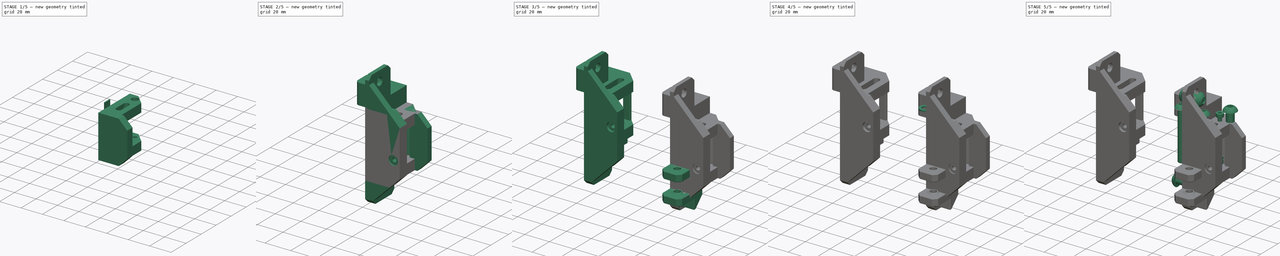
[diagram: build sequence overview — one tinted view per stage of 5, left to right]
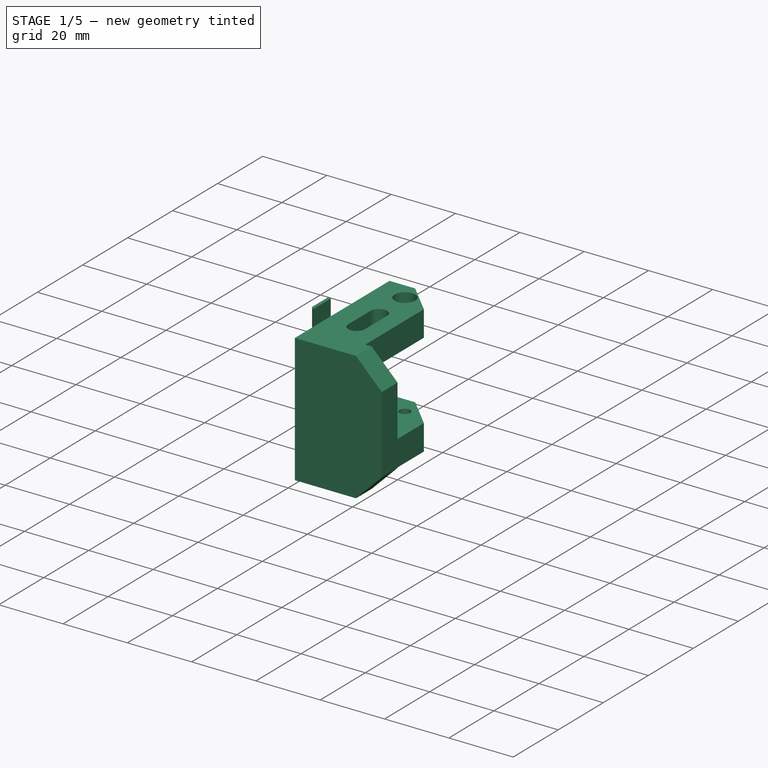
[diagram: stage 1 of 5 — iso view after this stage's code; geometry added in this stage tinted green]
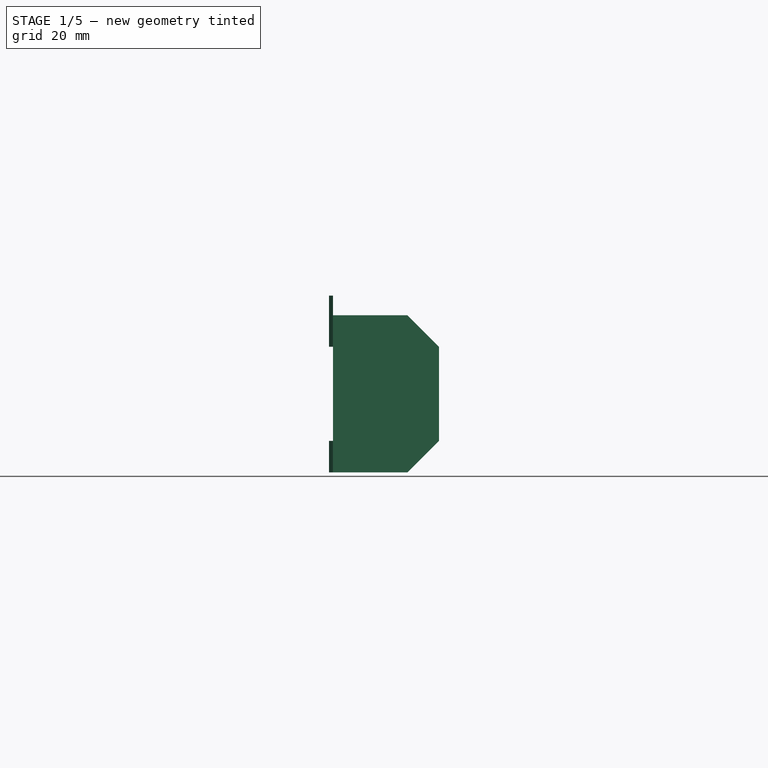
[diagram: stage 1 of 5 — front view after this stage's code; geometry added in this stage tinted green]
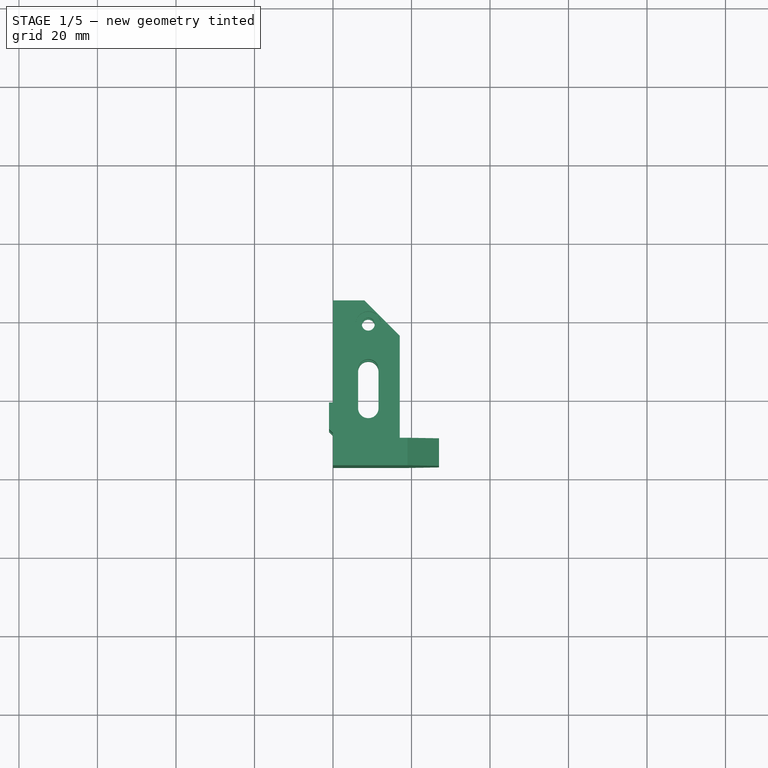
[diagram: stage 1 of 5 — top view after this stage's code; geometry added in this stage tinted green]
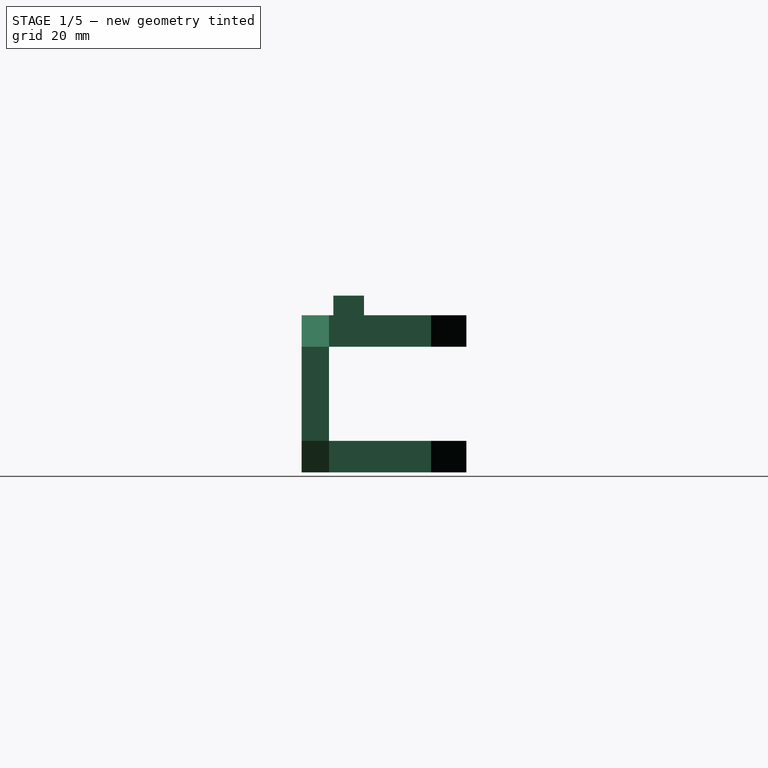
[diagram: stage 1 of 5 — right view after this stage's code; geometry added in this stage tinted green]
FCSTD DOCUMENT  (FreeCAD 0.19R24291 (Git))
Label: front-tesioner
License: Other
LicenseURL: GPL3
objects: Part::Feature×38, Part::FeaturePython×20, Part::Box×20, Part::Cut×14, Part::Chamfer×13, Part::Cylinder×10, App::Part×9, Sketcher::SketchObject×6, PartDesign::Plane×6, Part::MultiFuse×6, PartDesign::Chamfer×5, PartDesign::Pad×3, PartDesign::Pocket×3, PartDesign::CoordinateSystem×2, Part::Fillet×2, PartDesign::Body×1
note: 160 computed .brp shape members not serialized (recipe doc carries the construction recipe); baked Part::Feature solids carry a one-line shape summary decoded from their .brp

FEATURE [Part::Box] Box006  label="Cube006"
  AttacherType = Attacher::AttachEngine3D
  Height = 40
  Length = 17
  Placement = pos=(0,3,-6) rot=(0,0,1;0rad)
  Width = 42
FEATURE [Part::Box] Box008  label="Cube008"
  AttacherType = Attacher::AttachEngine3D
  Height = 40
  Length = 27
  Placement = pos=(0,3,-6) rot=(0,0,1;0rad)
  Width = 7
FEATURE [Part::Box] Box013  label="Cube013"
  AttacherType = Attacher::AttachEngine3D
  Height = 8
  Length = 1
  Placement = pos=(-1,11.1,-6) rot=(0,0,1;0rad)
  Width = 7.8
FEATURE [Part::Box] Box014  label="Cube014"
  AttacherType = Attacher::AttachEngine3D
  Height = 67
  Length = 5.2
  Placement = pos=(6.4,15,-6) rot=(0,0,1;0rad)
  Width = 15
FEATURE [Part::Chamfer] Chamfer020026003
  Base = -> Box006
  Edges = 1 edges r=9: [Edge7]
FEATURE [Part::Cylinder] Cylinder005
  Angle = 360
  AttacherType = Attacher::AttachEngine3D
  Height = 4
  Placement = pos=(9,39,31) rot=(0,0,1;0rad)
  Radius = 3.2
FEATURE [Part::Cylinder] Cylinder006
  Angle = 360
  AttacherType = Attacher::AttachEngine3D
  Height = 54
  Placement = pos=(9,39,-12) rot=(0,0,1;0rad)
  Radius = 1.65
FEATURE [Part::Cut] Cut002002002007004004001006009
  Base = -> Chamfer020026003
  Tool = -> Cylinder006
FEATURE [Part::Cylinder] Cylinder007
  Angle = 360
  AttacherType = Attacher::AttachEngine3D
  Height = 6
  Placement = pos=(9,39,-6) rot=(0,0,1;0rad)
  Radius = 1.9
FEATURE [Part::Cut] Cut002002002007004004001006010
  Base = -> Cut002002002007004004001006009
  Tool = -> Cylinder007
FEATURE [Part::Cut] Cut002002002007004004001006011
  Base = -> Cut002002002007004004001006010
  Tool = -> Cylinder005
FEATURE [Part::Chamfer] Chamfer020026005
  Base = -> Box008
  Edges = 2 edges r=8: [Edge6,Edge8]
FEATURE [Part::Box] Box021  label="Cube021"
  AttacherType = Attacher::AttachEngine3D
  Height = 24
  Length = 17
  Placement = pos=(0,10,2) rot=(0,0,1;0rad)
  Width = 40
FEATURE [Part::Cut] Cut002002002007004004001006012
  Base = -> Cut002002002007004004001006011
  Tool = -> Box021
FEATURE [Part::Box] Box022  label="Cube022"
  AttacherType = Attacher::AttachEngine3D
  Height = 13
  Length = 1
  Placement = pos=(-1,11.1,26) rot=(0,0,1;0rad)
  Width = 7.8
FEATURE [Part::MultiFuse] Fusion
  Shapes = -> [Box013,Box022]
FEATURE [Part::Chamfer] Chamfer020026007
  Base = -> Fusion
  Edges = 2 edges r=0.99: [Edge1,Edge13]
FEATURE [Part::Fillet] Fillet001
  Base = -> Box014
  Edges = 4 edges r=2.55: [Edge1,Edge3,Edge5,Edge7]
FEATURE [Part::Cut] Cut002002002007004004001006016
  Base = -> Cut002002002007004004001006012
  Tool = -> Fillet001
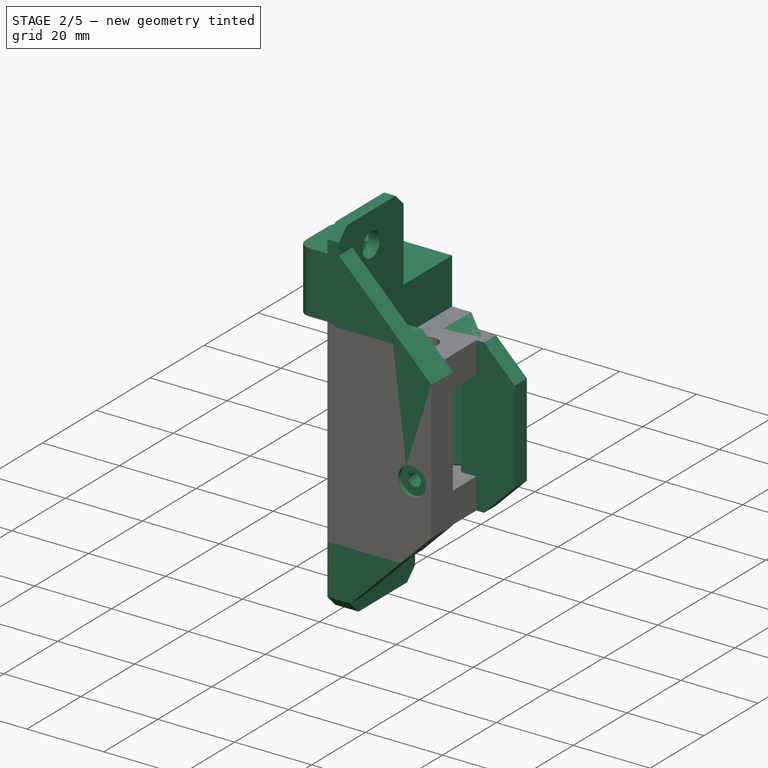
[diagram: stage 2 of 5 — iso view after this stage's code; geometry added in this stage tinted green]
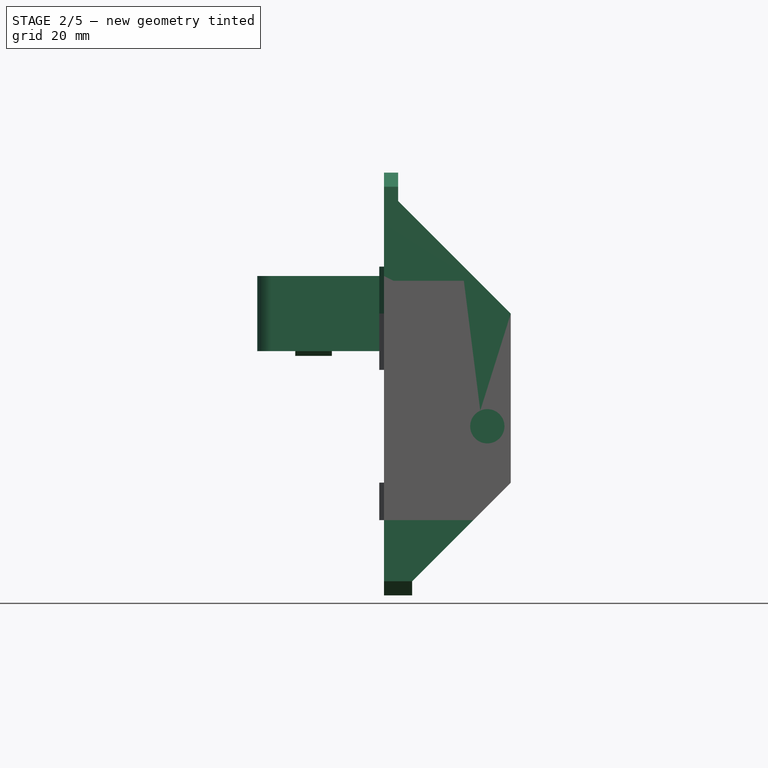
[diagram: stage 2 of 5 — front view after this stage's code; geometry added in this stage tinted green]
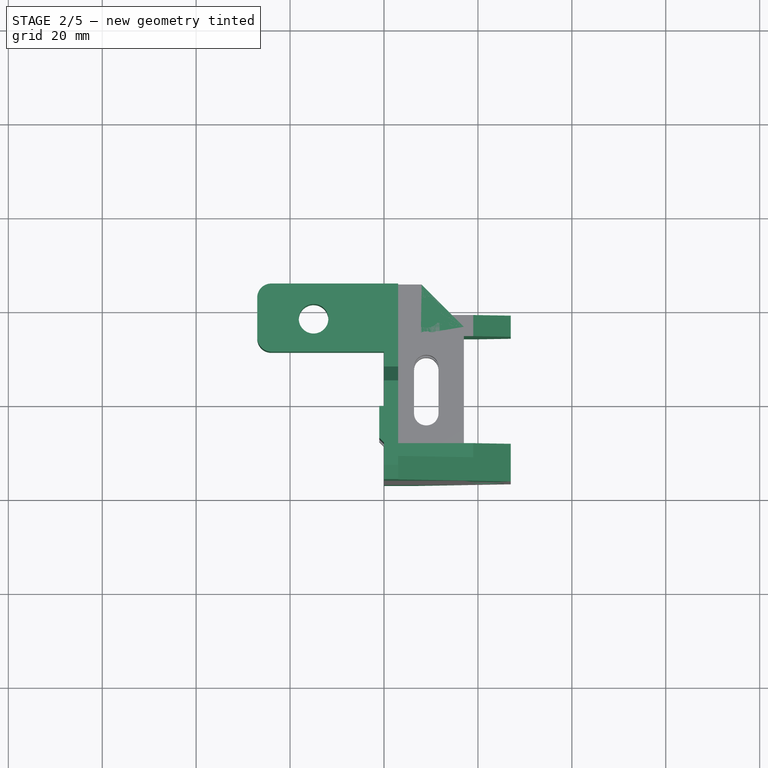
[diagram: stage 2 of 5 — top view after this stage's code; geometry added in this stage tinted green]
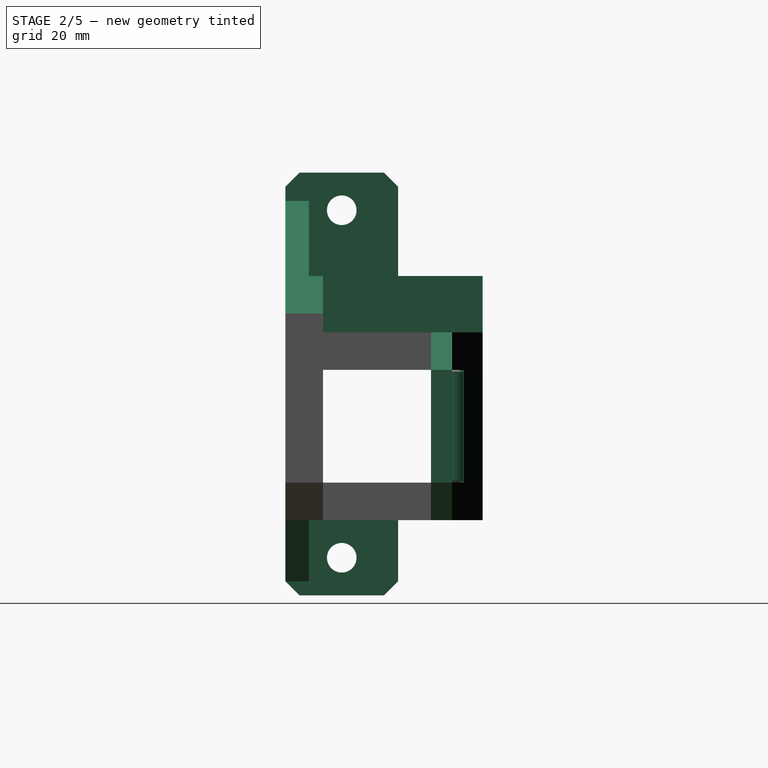
[diagram: stage 2 of 5 — right view after this stage's code; geometry added in this stage tinted green]
FEATURE [PartDesign::Body] Body  label="idler-inner"
  Group = -> [Sketch,Pad,DatumPlane,DatumPlane001,DatumPlane002,Sketch002,Sketch003,DatumPlane003,DatumPlane004,Pad001,Pad002,DatumPlane005,Sketch004,Pocket001,Chamfer,Chamfer020021,Chamfer020022,Chamfer020023,Sketch005,Pocket,Sketch006,Pocket002,Chamfer020024]
  Origin = -> Origin009
  Placement = pos=(9,-2e-15,14) rot=(0,0,1;4.71239rad)
  Tip = -> Chamfer020024
FEATURE [Part::Box] Box  label="Cube"
  AttacherType = Attacher::AttachEngine3D
  Height = 24
  Length = 17
  Placement = pos=(0,11,2) rot=(0,0,1;0rad)
  Width = 35
FEATURE [Part::Feature] Cut002002002007004004001006001  label="outer-base001"
  shape: bbox 54 x 42 x 90 mm, 90 faces (baked)
FEATURE [Part::Feature] Cut002002002007004004001006002  label="outer-base002"
  shape: bbox 54 x 42 x 90 mm, 90 faces (baked)
FEATURE [Part::Box] Box017  label="Cube017"
  AttacherType = Attacher::AttachEngine3D
  Height = 24
  Length = 17
  Placement = pos=(3,11,34) rot=(0,0,1;0rad)
  Width = 35
FEATURE [Part::MultiFuse] Fusion001
  Shapes = -> [Box,Box017]
FEATURE [Part::Cut] Cut002002002007004004001006005
  Base = -> Cut002002002007004004001006002
  Tool = -> Fusion001
FEATURE [Part::Box] Box019  label="Cube019"
  AttacherType = Attacher::AttachEngine3D
  Height = 24
  Length = 6
  Placement = pos=(6,39.5,14) rot=(0,0,1;0rad)
  Width = 5.5
FEATURE [Part::Chamfer] Chamfer020025
  Base = -> Box019
  Edges = 1 edges r=4: [Edge7]
FEATURE [Part::Chamfer] Chamfer020026
  Base = -> Chamfer020025
  Edges = 3 edges r=0.4: [Edge2,Edge12,Edge15]
  Placement = pos=(0,0,-12) rot=(0,0,1;0rad)
FEATURE [Part::MultiFuse] Fusion004
  Shapes = -> [Cut002002002007004004001006005,Chamfer020026]
FEATURE [Part::Cylinder] Cylinder003
  Angle = 360
  AttacherType = Attacher::AttachEngine3D
  Height = 3
  Placement = pos=(0,0,0) rot=(1,0,0;4.71239rad)
  Radius = 3.65
FEATURE [Part::Cylinder] Cylinder004
  Angle = 360
  AttacherType = Attacher::AttachEngine3D
  Height = 10
  Placement = pos=(0,3,7e-16) rot=(-1,0,0;1.5708rad)
  Radius = 1.6
FEATURE [Part::MultiFuse] Fusion005  label="m3-slot"
  Placement = pos=(22,1,14) rot=(0,0,1;0rad)
  Shapes = -> [Cylinder004,Cylinder003]
FEATURE [Part::Cut] Cut002002002007004004001006008
  Base = -> Fusion004
  Tool = -> Fusion005001
FEATURE [Part::Feature] Body001  label="idler-inner001"
  Placement = pos=(9,35,14) rot=(0,0,-1;1.5708rad)
  shape: bbox 26.85 x 16 x 40 mm, 77 faces (baked)
FEATURE [Part::Feature] Part__Feature707  label="y-carrier-top-left"
  Placement = pos=(-1,71,3) rot=(0,0,1;0rad)
  shape: bbox 58.24 x 61.74 x 35 mm, 468 faces (baked)
FEATURE [Part::Box] Box020  label="Cube020"
  AttacherType = Attacher::AttachEngine3D
  Height = 40
  Length = 14
  Placement = pos=(13,34,-6) rot=(0,0,1;0rad)
  Width = 4.5
FEATURE [Part::Chamfer] Chamfer020026004
  Base = -> Box020
  Edges = 2 edges r=8: [Edge6,Edge8]
FEATURE [Part::Cylinder] Cylinder008
  Angle = 360
  AttacherType = Attacher::AttachEngine3D
  Height = 24
  Placement = pos=(9,39,2) rot=(0,0,1;0rad)
  Radius = 3.5
FEATURE [Part::Cylinder] Cylinder009
  Angle = 360
  AttacherType = Attacher::AttachEngine3D
  Height = 24
  Placement = pos=(9,39,2) rot=(0,0,1;0rad)
  Radius = 1.65
FEATURE [Part::Cut] Cut002002002007004004001006014
  Base = -> Cylinder008
  Tool = -> Cylinder009
FEATURE [Part::Chamfer] Chamfer020026006
  Base = -> Cut002002002007004004001006014
  Edges = 4 edges r=0.4: [Edge1,Edge3,Edge4,Edge5]
FEATURE [Part::Cut] Cut002002002007004004001006015
  Base = -> Chamfer020026005
  Tool = -> Fusion005
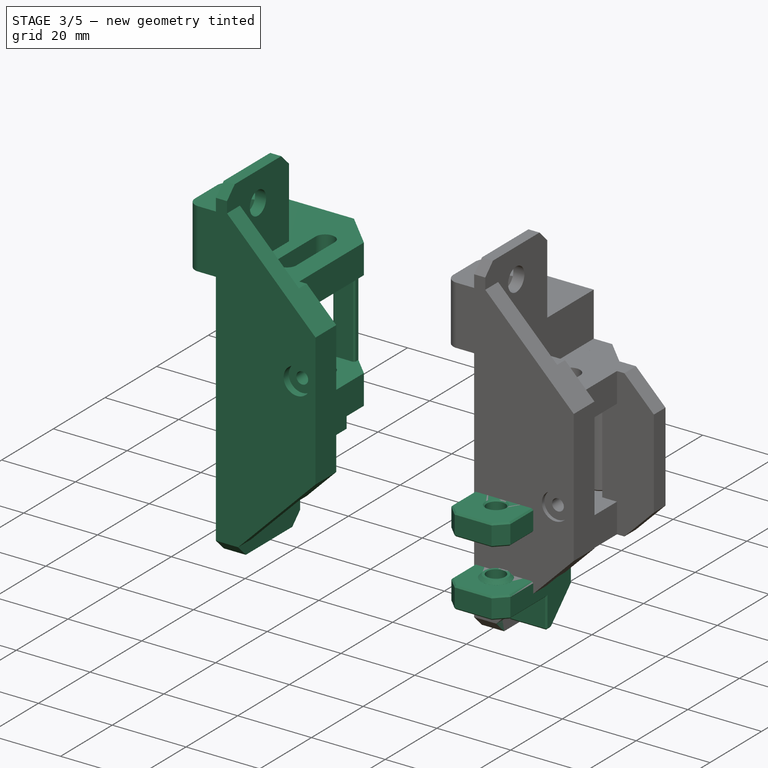
[diagram: stage 3 of 5 — iso view after this stage's code; geometry added in this stage tinted green]
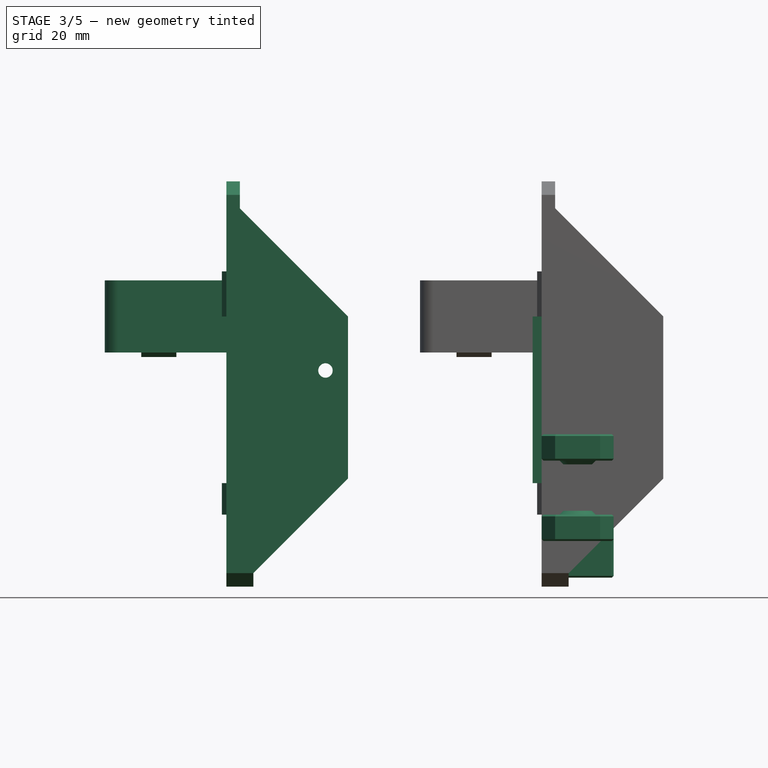
[diagram: stage 3 of 5 — front view after this stage's code; geometry added in this stage tinted green]
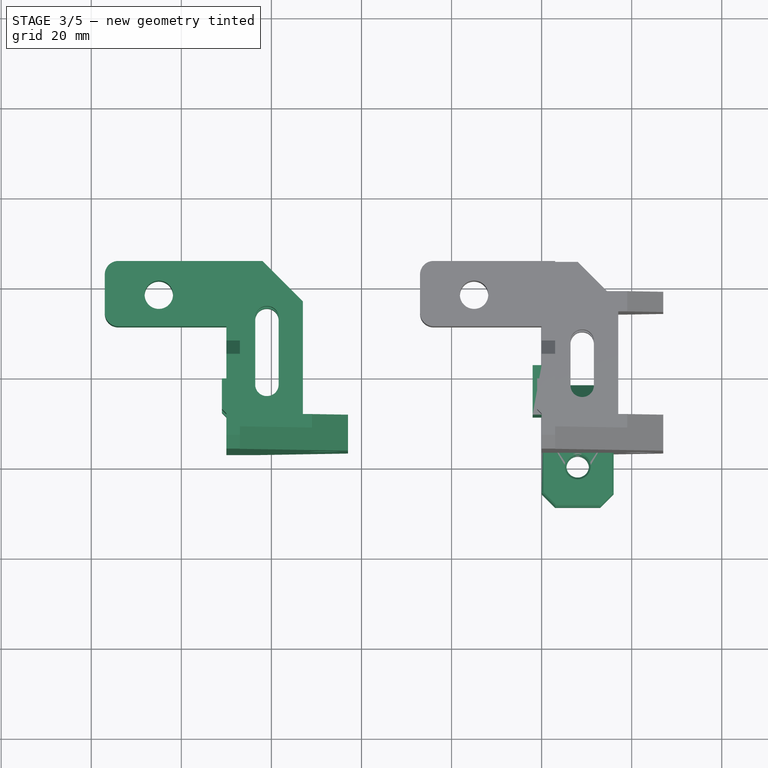
[diagram: stage 3 of 5 — top view after this stage's code; geometry added in this stage tinted green]
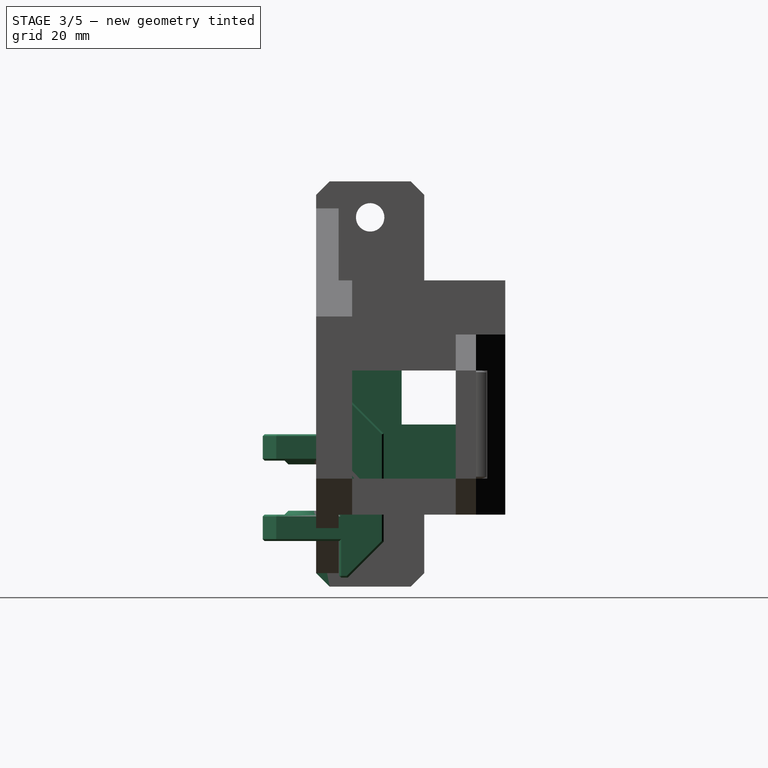
[diagram: stage 3 of 5 — right view after this stage's code; geometry added in this stage tinted green]
FEATURE [Part::Feature] Part__Mirroring004002  label="smooth-idler-6mm"
  Placement = pos=(2,0,0) rot=(0,0,1;0rad)
  shape: bbox 15 x 15 x 10 mm, 8 faces (baked)
FEATURE [Part::Feature] Part__Mirroring003001  label="front-idler-spacer003"
  Placement = pos=(2,0,0) rot=(0,0,1;0rad)
  shape: bbox 8 x 8 x 0.85 mm, 4 faces (baked)
FEATURE [Part::Feature] Part__Mirroring004001  label="front-idler-spacer002"
  Placement = pos=(2,0,0) rot=(0,0,1;0rad)
  shape: bbox 8 x 8 x 0.85 mm, 4 faces (baked)
FEATURE [App::Part] Part001  label="right-idler"
  Group = -> [Part__Mirroring004002,Part__Mirroring003001,Part__Mirroring004001,Part__Mirroring004003,Part__Mirroring001,Washer,Screw001,Screw,Screw003,Washer001,Part__Mirroring004004,Washer006,Screw009,Washer005,HeatSet001,LCS_right_idler,Screw016]
  Origin = -> Origin001
FEATURE [Part::Feature] Part__Feature312  label="Front Idler B Top"
  Placement = pos=(2.13e-13,-793.147,98.4568) rot=(1,0,0;3.14159rad)
  shape: bbox 52.51 x 46.99 x 19.68 mm, 211 faces (baked)
FEATURE [Part::Feature] Part__Feature313  label="Front Idler B Bottom"
  Placement = pos=(2.842e-13,190,0.2) rot=(0,0,1;0rad)
  shape: bbox 51.45 x 46.99 x 19.26 mm, 216 faces (baked)
FEATURE [Part::Feature] Part__Feature307  label="SOLID024"
  shape: bbox 18 x 25 x 45 mm, 83 faces (baked)
FEATURE [App::Part] Part002  label="voron-idler"
  Group = -> [Part__Feature312,Part__Feature313,Part__Feature307]
  Origin = -> Origin002
  Placement = pos=(383,386,-34) rot=(0,0,1;4.71239rad)
FEATURE [Part::Feature] Part__Feature  label="smooth-idler-6mm (4)(Mirror)"
  Placement = pos=(157,0,-310) rot=(0,0,1;0rad)
  shape: bbox 15 x 15 x 10 mm, 8 faces (baked)
FEATURE [Part::Feature] Part__Feature314  label="front-idler-spacer002(Mirror)"
  Placement = pos=(157,0,-310) rot=(0,0,1;0rad)
  shape: bbox 8 x 8 x 0.85 mm, 4 faces (baked)
FEATURE [Part::Feature] Part__Feature315  label="M5x40-Screw (2)(Mirror)"
  Placement = pos=(146,15,-356.1) rot=(0,0,1;0rad)
  shape: bbox 9.5 x 9.5 x 42.75 mm, 15 faces (baked)
FEATURE [Part::Feature] Part__Feature316  label="92095A239_NO THREADS(Mirror)"
  Placement = pos=(148.2,15,-366) rot=(-0.57735,0.57735,-0.57735;2.0944rad)
  shape: bbox 12.17 x 10.57 x 10.5 mm, 20 faces (baked)
FEATURE [Part::Feature] Part__Feature317  label="SOLID"
  shape: bbox 28.51 x 46.31 x 85.26 mm, 55 faces (baked)
FEATURE [App::Part] right_outer_Mirror_  label="right-outer(Mirror)"
  Group = -> [Part__Feature316,Part__Feature317]
  Origin = -> Origin003
FEATURE [Part::Feature] Part__Feature318  label="90593A004_NO THREADS_Black-Oxide Steel Hex Nut(Mirror)"
  Placement = pos=(146,15,-326) rot=(-1,0,0;1.5708rad)
  shape: bbox 9.238 x 9.238 x 4 mm, 21 faces (baked)
FEATURE [Part::Feature] Part__Feature319  label="SOLID025"
  shape: bbox 25.68 x 16.01 x 40.92 mm, 145 faces (baked)
FEATURE [App::Part] right_inner_Mirror_  label="right-inner(Mirror)"
  Group = -> [Part__Feature318,Part__Feature319]
  Origin = -> Origin004
FEATURE [Part::Feature] Part__Feature320  label="91290A171_NO THREADS_Black-Oxide Alloy Steel Socket Head Screw(Mirror
)"
  Placement = pos=(132.5,17.5,-336) rot=(-1,0,0;1.5708rad)
  shape: bbox 5.5 x 33 x 5.5 mm, 21 faces (baked)
FEATURE [App::Part] left_idler_new  label="left-idler-new"
  Group = -> [Part__Feature,Part__Feature314,Part__Feature315,right_outer_Mirror_,right_inner_Mirror_,Part__Feature320]
  Origin = -> Origin005
FEATURE [Part::Feature] Part__Feature321  label="smooth-idler-6mm (4)"
  Placement = pos=(157,5.27794,310) rot=(0,0,1;0rad)
  shape: bbox 15 x 15 x 10 mm, 8 faces (baked)
FEATURE [Part::Feature] Part__Feature322  label="M5x40-Screw (2)"
  Placement = pos=(146,20.2779,356.1) rot=(0,0,1;0rad)
  shape: bbox 9.5 x 9.5 x 42.75 mm, 15 faces (baked)
FEATURE [Part::Feature] Part__Feature323  label="92095A239_NO THREADS"
  Placement = pos=(148.2,15,366) rot=(0.57735,-0.57735,-0.57735;2.0944rad)
  shape: bbox 12.17 x 10.57 x 10.5 mm, 20 faces (baked)
FEATURE [Part::Feature] Part__Feature324  label="SOLID026"
  shape: bbox 28.51 x 46.31 x 85.26 mm, 55 faces (baked)
FEATURE [App::Part] outer
  Group = -> [Part__Feature323,Part__Feature324]
  Origin = -> Origin006
FEATURE [Part::Feature] Part__Feature325  label="90593A004_NO THREADS_Black-Oxide Steel Hex Nut"
  Placement = pos=(146,15,326) rot=(1,0,0;1.5708rad)
  shape: bbox 9.238 x 9.238 x 4 mm, 21 faces (baked)
FEATURE [Part::Feature] Part__Feature326  label="SOLID027"
  shape: bbox 25.68 x 16.01 x 40.92 mm, 145 faces (baked)
FEATURE [App::Part] right_inner  label="right-inner"
  Group = -> [Part__Feature325,Part__Feature326]
  Origin = -> Origin007
  Placement = pos=(0,5.27794,0) rot=(0,0,1;0rad)
FEATURE [Part::Feature] Part__Feature327  label="91290A171_NO THREADS_Black-Oxide Alloy Steel Socket Head Screw"
  Placement = pos=(132.5,17.5,336) rot=(1,0,0;1.5708rad)
  shape: bbox 5.5 x 33 x 5.5 mm, 21 faces (baked)
FEATURE [App::Part] right_idler_new  label="right-idler-new"
  Group = -> [Part__Feature321,Part__Feature322,outer,right_inner,Part__Feature327]
  Origin = -> Origin008
FEATURE [Sketcher::SketchObject] Sketch
  FullyConstrained = true
  MapMode = 5
  Placement = pos=(0,0,0) rot=(0.57735,0.57735,0.57735;2.0944rad)
  Support = -> [YZ_Plane009]
  sketch-geometry (12):
    g0: LineSegment StartX=-8.85 StartY=6 StartZ=0 EndX=8 EndY=6 EndZ=0
    g1: LineSegment StartX=8 StartY=6 StartZ=0 EndX=8 EndY=-6 EndZ=0
    g2: LineSegment StartX=8 StartY=-6 StartZ=0 EndX=-8.85 EndY=-6 EndZ=0
    g3: LineSegment StartX=-8.85 StartY=-6 StartZ=0 EndX=-8.85 EndY=-11.85 EndZ=0
    g4: LineSegment StartX=-8.85 StartY=-11.85 StartZ=0 EndX=8.15 EndY=-11.85 EndZ=0
    g5: LineSegment StartX=8.15 StartY=-11.85 StartZ=0 EndX=8.15 EndY=-20 EndZ=0
    g6: LineSegment StartX=8.15 StartY=-20 StartZ=0 EndX=18 EndY=-20 EndZ=0
    g7: LineSegment StartX=18 StartY=-20 StartZ=0 EndX=18 EndY=20 EndZ=0
    g8: LineSegment StartX=18 StartY=20 StartZ=0 EndX=8.15 EndY=20 EndZ=0
    g9: LineSegment StartX=8.15 StartY=20 StartZ=0 EndX=8.15 EndY=11.85 EndZ=0
    g10: LineSegment StartX=8.15 StartY=11.85 StartZ=0 EndX=-8.85 EndY=11.85 EndZ=0
    g11: LineSegment StartX=-8.85 StartY=11.85 StartZ=0 EndX=-8.85 EndY=6 EndZ=0
  constraints (36):
    c: Horizontal(g0)
    c: Coincident(g0,g1)
    c: Vertical(g1)
    c: Coincident(g1,g2)
    c: Horizontal(g2)
    c: Coincident(g2,g3)
    c: Vertical(g3)
    c: Coincident(g3,g4)
    c: Horizontal(g4)
    c: Coincident(g4,g5)
    c: Vertical(g5)
    c: Coincident(g5,g6)
    c: Horizontal(g6)
    c: Coincident(g6,g7)
    c: Vertical(g7)
    c: Coincident(g7,g8)
    c: Horizontal(g8)
    c: Coincident(g8,g9)
    c: Vertical(g9)
    c: Coincident(g9,g10)
    c: Horizontal(g10)
    c: Coincident(g10,g11)
    c: Coincident(g11,g0)
    c: Vertical(g11)
    c: DistanceY(g11,g11) = 5.85
    c: DistanceY(g1,g1) = 12
    c: DistanceY(g3,g3) = 5.85
    c: DistanceY(g-1,g0) = 6
    c: DistanceX(g0,g-1) = 8.85
    c: DistanceX(g2,g-1) = 8.85
    c: DistanceX(g-1,g0) = 8
    c: DistanceX(g1,g6) = 10
    c: DistanceX(g10,g10) = 17
    c: DistanceX(g4,g4) = 17
    c: DistanceY(g9,g9) = 8.15
    c: DistanceY(g5,g5) = 8.15
FEATURE [PartDesign::Pad] Pad
  Direction = (1,1,1)
  Length = 16
  Length2 = 100
  Placement = pos=(0,0,0) rot=(0.57735,0.57735,0.57735;2.0944rad)
  Profile = -> Sketch
  Type = 0
FEATURE [Part::Box] Box009  label="Cube009"
  AttacherType = Attacher::AttachEngine3D
  Height = 16
  Length = 6
  Placement = pos=(0,3,-22) rot=(0,0,1;0rad)
  Width = 24
FEATURE [Part::Chamfer] Chamfer020020
  Base = -> Box009
  Edges = 2 edges r=3: [Edge9,Edge11]
FEATURE [PartDesign::Pad] Pad001
  BaseFeature = -> Pad
  Direction = (1,1,1)
  Length = 0.85
  Length2 = 100
  Placement = pos=(0,0,0) rot=(0.57735,0.57735,0.57735;2.0944rad)
  Profile = -> Sketch002
  Type = 0
FEATURE [PartDesign::Pad] Pad002
  BaseFeature = -> Pad001
  Direction = (1,1,1)
  Length = 0.85
  Length2 = 100
  Placement = pos=(0,0,0) rot=(0.57735,0.57735,0.57735;2.0944rad)
  Profile = -> Sketch003
  Reversed = true
  Type = 0
FEATURE [PartDesign::Plane] DatumPlane005
  AttachmentOffset = pos=(0,0,-12) rot=(0,0,1;0rad)
  Length = 60
  MapMode = 5
  Placement = pos=(0,0,-12) rot=(0,0,1;0rad)
  ResizeMode = 0
  Support = -> [XY_Plane009]
  Width = 60
FEATURE [Sketcher::SketchObject] Sketch004
  FullyConstrained = true
  MapMode = 5
  Placement = pos=(0,0,-12) rot=(0,0,1;0rad)
  Support = -> [DatumPlane005]
  sketch-geometry (1):
    g0: Circle CenterX=8 CenterY=0 CenterZ=0 NormalX=0 NormalY=0 NormalZ=1 AngleXU=0 Radius=2.5
  constraints (3):
    c: PointOnObject(g0,g-1)
    c: DistanceX(g-1,g0) = 8
    c: Radius(g0) = 2.5
FEATURE [PartDesign::Pocket] Pocket001
  BaseFeature = -> Pad002
  Length = 5
  Length2 = 100
  Placement = pos=(0,0,0) rot=(0.57735,0.57735,0.57735;2.0944rad)
  Profile = -> Sketch004
  Reversed = true
  Type = 1
FEATURE [PartDesign::Chamfer] Chamfer
  Angle = 45
  Base = -> Pocket001 [Edge46,Edge31]
  BaseFeature = -> Pocket001
  ChamferType = 0
  FlipDirection = false
  Placement = pos=(0,0,0) rot=(0.57735,0.57735,0.57735;2.0944rad)
  Size = 0.84
  Size2 = 1
  SupportTransform = false
FEATURE [PartDesign::Chamfer] Chamfer020021
  Angle = 45
  Base = -> Chamfer [Edge42,Edge36]
  BaseFeature = -> Chamfer
  ChamferType = 0
  FlipDirection = false
  Placement = pos=(0,0,0) rot=(0.57735,0.57735,0.57735;2.0944rad)
  Size = 0.4
  Size2 = 1
  SupportTransform = false
FEATURE [PartDesign::Chamfer] Chamfer020022
  Angle = 45
  Base = -> Chamfer020021 [Edge25,Edge35,Edge19,Edge29]
  BaseFeature = -> Chamfer020021
  ChamferType = 0
  FlipDirection = false
  Placement = pos=(0,0,0) rot=(0.57735,0.57735,0.57735;2.0944rad)
  Size = 3
  Size2 = 1
  SupportTransform = false
FEATURE [PartDesign::Chamfer] Chamfer020023
  Angle = 45
  Base = -> Chamfer020022 [Edge47,Edge52]
  BaseFeature = -> Chamfer020022
  ChamferType = 0
  FlipDirection = false
  Placement = pos=(0,0,0) rot=(0.57735,0.57735,0.57735;2.0944rad)
  Size = 8
  Size2 = 1
  SupportTransform = false
FEATURE [Sketcher::SketchObject] Sketch005
  FullyConstrained = true
  MapMode = 5
  Placement = pos=(16,-3.6e-15,3.6e-15) rot=(0.57735,0.57735,0.57735;2.0944rad)
  Support = -> [DatumPlane003]
  sketch-geometry (1):
    g0: Circle CenterX=13 CenterY=0 CenterZ=0 NormalX=0 NormalY=0 NormalZ=1 AngleXU=0 Radius=1.55
  constraints (3):
    c: PointOnObject(g0,g-1)
    c: Radius(g0) = 1.55
    c: DistanceX(g-1,g0) = 13
FEATURE [PartDesign::Pocket] Pocket
  BaseFeature = -> Chamfer020023
  Length = 5
  Length2 = 100
  Placement = pos=(0,0,0) rot=(0.57735,0.57735,0.57735;2.0944rad)
  Profile = -> Sketch005
  Type = 1
FEATURE [Sketcher::SketchObject] Sketch006
  FullyConstrained = true
  MapMode = 5
  Placement = pos=(0,0,0) rot=(0.57735,0.57735,0.57735;2.0944rad)
  Support = -> [DatumPlane004]
  sketch-geometry (1):
    g0: Circle CenterX=13 CenterY=0 CenterZ=0 NormalX=0 NormalY=0 NormalZ=1 AngleXU=0 Radius=1.9
  constraints (3):
    c: PointOnObject(g0,g-1)
    c: DistanceX(g-1,g0) = 13
    c: Radius(g0) = 1.9
FEATURE [PartDesign::Pocket] Pocket002
  BaseFeature = -> Pocket
  Length = 7
  Length2 = 100
  Placement = pos=(0,0,0) rot=(0.57735,0.57735,0.57735;2.0944rad)
  Profile = -> Sketch006
  Reversed = true
  Type = 0
FEATURE [PartDesign::Chamfer] Chamfer020024
  Angle = 45
  Base = -> Pocket002 [Edge27,Edge22,Edge18,Edge20,Edge60,Edge31,Edge24,Edge42,Edge35,Edge48,Edge52,Edge53,Edge47,Edge51,Edge45,Edge10,Edge12,Edge46,Edge50,Edge13,Edge8,Edge6,Edge4,Edge15,Edge2,Edge1,Edge3,Edge5,Edge11,Edge9,Edge33,Edge25,Edge26,Edge36,Edge37,Edge38,Edge44,Edge34,Edge17,Edge28]
  BaseFeature = -> Pocket002
  ChamferType = 0
  FlipDirection = false
  Placement = pos=(0,0,0) rot=(0.57735,0.57735,0.57735;2.0944rad)
  Size = 0.4
  Size2 = 1
  SupportTransform = false
FEATURE [Part::Box] Box015  label="Cube015"
  AttacherType = Attacher::AttachEngine3D
  Height = 24
  Length = 17
  Placement = pos=(0,11,14) rot=(0,0,1;0rad)
  Width = 38
FEATURE [Part::Box] Box016  label="Cube016"
  AttacherType = Attacher::AttachEngine3D
  Height = 37
  Length = 2
  Placement = pos=(-2,11,1) rot=(0,0,1;0rad)
  Width = 11
FEATURE [Part::Box] Box018  label="Cube018"
  AttacherType = Attacher::AttachEngine3D
  Height = 24
  Length = 17
  Placement = pos=(6,11,-18) rot=(0,0,1;0rad)
  Width = 38
FEATURE [Part::MultiFuse] Fusion002
  Shapes = -> [Box018,Box015]
FEATURE [Part::Cut] Cut002002002007004004001006006
  Base = -> Cut002002002007004004001006001
  Tool = -> Fusion002
FEATURE [Part::Feature] Chamfer020026001
  shape: bbox 6 x 5.5 x 24 mm, 10 faces (baked)
FEATURE [Part::Feature] Chamfer020026002
  shape: bbox 6 x 5.5 x 24 mm, 10 faces (baked)
FEATURE [Part::MultiFuse] Fusion003
  Shapes = -> [Cut002002002007004004001006006,Chamfer020026002]
FEATURE [Part::Feature] Fusion005001  label="m3-slot001"
  Placement = pos=(22,2,14) rot=(0,0,1;0rad)
  shape: bbox 7.3 x 13 x 7.3 mm, 5 faces (baked)
FEATURE [Part::Feature] Fusion005002  label="m3-slot002"
  Placement = pos=(22,2,26) rot=(0,0,1;0rad)
  shape: bbox 7.3 x 13 x 7.3 mm, 5 faces (baked)
FEATURE [Part::Cut] Cut002002002007004004001006007
  Base = -> Fusion003
  Placement = pos=(-70,0,0) rot=(0,0,1;0rad)
  Tool = -> Fusion005002
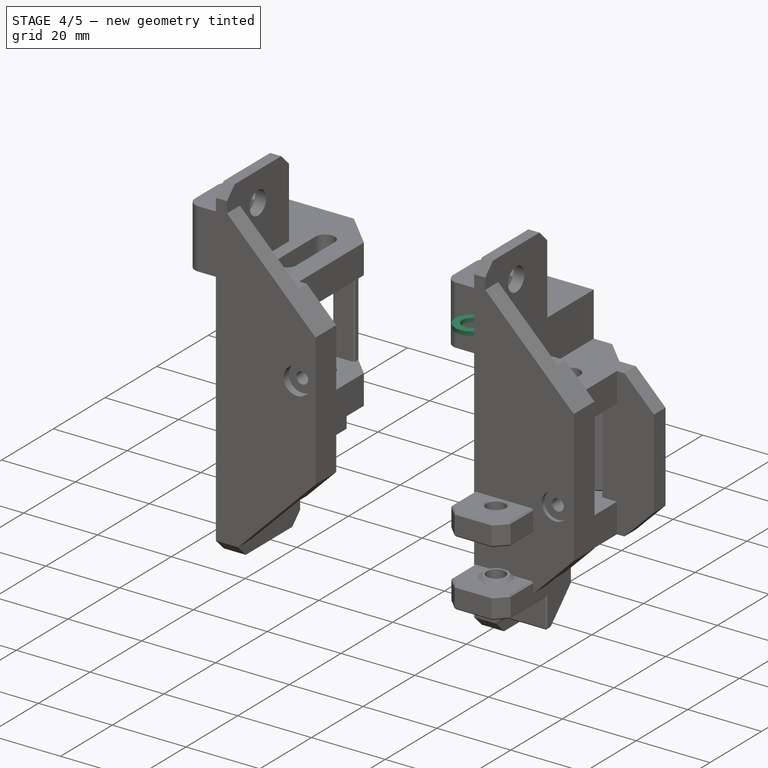
[diagram: stage 4 of 5 — iso view after this stage's code; geometry added in this stage tinted green]
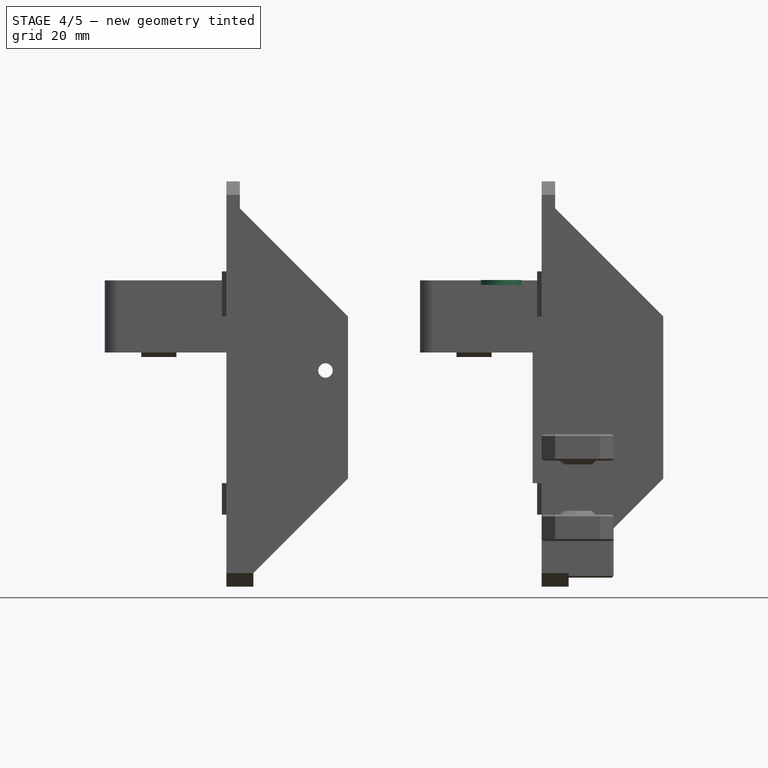
[diagram: stage 4 of 5 — front view after this stage's code; geometry added in this stage tinted green]
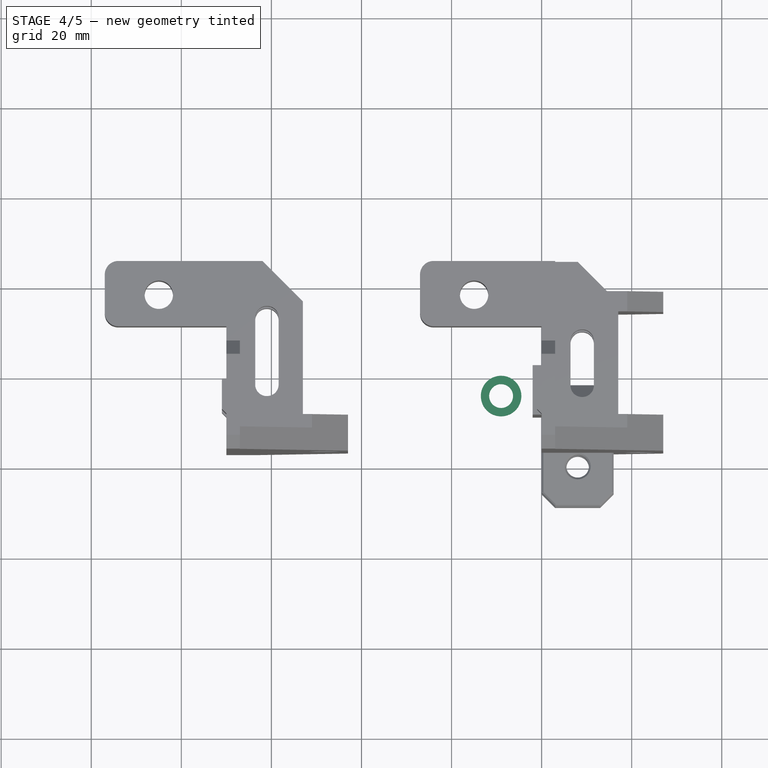
[diagram: stage 4 of 5 — top view after this stage's code; geometry added in this stage tinted green]
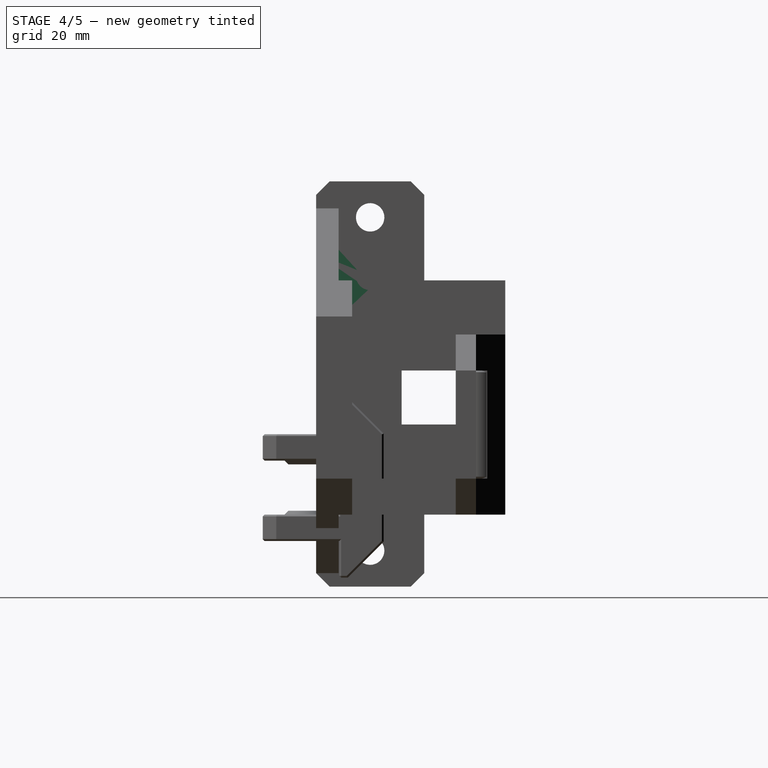
[diagram: stage 4 of 5 — right view after this stage's code; geometry added in this stage tinted green]
FEATURE [Part::FeaturePython] Washer006  label="M5-Washer"  # Fasteners workbench fastener (typed FeaturePython)
  Placement = pos=(-9,15,45) rot=(0,0,1;0rad)
  baseObject = -> Part__Mirroring004004 [Edge154]
  diameter = 6
  invert = true
  matchOuter = true
  offset = 0
  type = 5
FEATURE [PartDesign::Plane] DatumPlane
  AttachmentOffset = pos=(0,0,-17) rot=(0,0,1;0rad)
  Length = 60
  MapMode = 5
  Placement = pos=(0,0,-17) rot=(0,0,1;0rad)
  ResizeMode = 0
  Support = -> [XY_Plane009]
  Width = 60
FEATURE [PartDesign::Plane] DatumPlane001
  AttachmentOffset = pos=(0,0,-6) rot=(0,0,1;0rad)
  Length = 60
  MapMode = 5
  Placement = pos=(0,0,-6) rot=(0,0,1;0rad)
  ResizeMode = 0
  Support = -> [XY_Plane009]
  Width = 60
FEATURE [PartDesign::Plane] DatumPlane002
  AttachmentOffset = pos=(0,0,6) rot=(0,0,1;0rad)
  Length = 60
  MapMode = 5
  Placement = pos=(0,0,6) rot=(0,0,1;0rad)
  ResizeMode = 0
  Support = -> [XY_Plane009]
  Width = 60
FEATURE [Sketcher::SketchObject] Sketch002
  FullyConstrained = true
  MapMode = 5
  Placement = pos=(0,0,-6) rot=(0,0,1;0rad)
  Support = -> [DatumPlane001]
  sketch-geometry (1):
    g0: Circle CenterX=8 CenterY=0 CenterZ=0 NormalX=0 NormalY=0 NormalZ=1 AngleXU=0 Radius=4
  constraints (3):
    c: PointOnObject(g0,g-1)
    c: DistanceX(g-1,g0) = 8
    c: Radius(g0) = 4
FEATURE [Sketcher::SketchObject] Sketch003
  FullyConstrained = true
  MapMode = 5
  Placement = pos=(0,0,6) rot=(0,0,1;0rad)
  Support = -> [DatumPlane002]
  sketch-geometry (1):
    g0: Circle CenterX=8 CenterY=0 CenterZ=0 NormalX=0 NormalY=0 NormalZ=1 AngleXU=0 Radius=4
  constraints (3):
    c: PointOnObject(g0,g-1)
    c: DistanceX(g-1,g0) = 8
    c: Radius(g0) = 4
FEATURE [PartDesign::Plane] DatumPlane003
  AttachmentOffset = pos=(0,0,16) rot=(0,0,1;0rad)
  Length = 60
  MapMode = 5
  Placement = pos=(16,-3.6e-15,3.6e-15) rot=(0.57735,0.57735,0.57735;2.0944rad)
  ResizeMode = 0
  Support = -> [YZ_Plane009]
  Width = 60
FEATURE [PartDesign::Plane] DatumPlane004
  Length = 60
  MapMode = 5
  Placement = pos=(0,0,0) rot=(0.57735,0.57735,0.57735;2.0944rad)
  ResizeMode = 0
  Support = -> [YZ_Plane009]
  Width = 60
FEATURE [Part::Box] Box002  label="Cube002"
  AttacherType = Attacher::AttachEngine3D
  Height = 16
  Length = 27
  Placement = pos=(-27,30.5,30) rot=(0,0,1;0rad)
  Width = 14.5
FEATURE [Part::Box] Box004  label="Cube004"
  AttacherType = Attacher::AttachEngine3D
  Height = 1
  Length = 7.8
  Placement = pos=(-18.9,30.5,29) rot=(0,0,1;0rad)
  Width = 2.5
FEATURE [Part::Box] Box005  label="Cube005"
  AttacherType = Attacher::AttachEngine3D
  Height = 1
  Length = 7.8
  Placement = pos=(-18.9,42,29) rot=(0,0,1;0rad)
  Width = 3
FEATURE [Part::Chamfer] Chamfer020005
  Base = -> Box005
  Edges = 1 edges r=0.99: [Edge9]
FEATURE [Part::Box] Box010  label="Cube010"
  AttacherType = Attacher::AttachEngine3D
  Height = 22
  Length = 3
  Placement = pos=(0,3,46) rot=(0,0,1;0rad)
  Width = 24
FEATURE [Part::Chamfer] Chamfer020014
  Base = -> Box010
  Edges = 2 edges r=3: [Edge10,Edge12]
FEATURE [Part::Cylinder] Cylinder
  Angle = 360
  AttacherType = Attacher::AttachEngine3D
  Height = 13
  Placement = pos=(3.1e-15,15,-14) rot=(0,1,0;1.5708rad)
  Radius = 3.15
FEATURE [Part::Cylinder] Cylinder001
  Angle = 360
  AttacherType = Attacher::AttachEngine3D
  Height = 10
  Placement = pos=(-1.33e-14,15,60) rot=(0,1,0;1.5708rad)
  Radius = 3.15
FEATURE [Part::Cylinder] Cylinder002
  Angle = 360
  AttacherType = Attacher::AttachEngine3D
  Height = 24
  Placement = pos=(-15,37.5,25) rot=(0,0,1;0rad)
  Radius = 3.15
FEATURE [Part::Fillet] Fillet
  Base = -> Box002
  Edges = 2 edges r=3: [Edge1,Edge3]
FEATURE [Part::Chamfer] Chamfer020015
  Base = -> Box004
  Edges = 1 edges r=0.99: [Edge9]
FEATURE [Part::Cut] Cut002002002007004004001003
  Base = -> Fillet
  Tool = -> Cylinder002
FEATURE [Part::Box] Box011  label="Cube011"
  AttacherType = Attacher::AttachEngine3D
  Height = 14
  Length = 14
  Placement = pos=(5,3,-19) rot=(0,0,1;0rad)
  Width = 5
FEATURE [Part::Box] Box012  label="Cube012"
  AttacherType = Attacher::AttachEngine3D
  Height = 17
  Length = 17
  Placement = pos=(2,3,45) rot=(0,0,1;0rad)
  Width = 5
FEATURE [Part::Chamfer] Chamfer020016
  Base = -> Box012
  Edges = 1 edges r=16: [Edge6]
  Placement = pos=(0,0,-12) rot=(0,0,1;0rad)
FEATURE [Part::Chamfer] Chamfer020019
  Base = -> Box011
  Edges = 1 edges r=13: [Edge8]
FEATURE [Part::Cut] Cut
  Base = -> Chamfer020014
  Placement = pos=(0,0,-13) rot=(0,0,1;0rad)
  Tool = -> Cylinder001
FEATURE [Part::Cut] Cut002002002007004004001004
  Base = -> Chamfer020020
  Tool = -> Cylinder
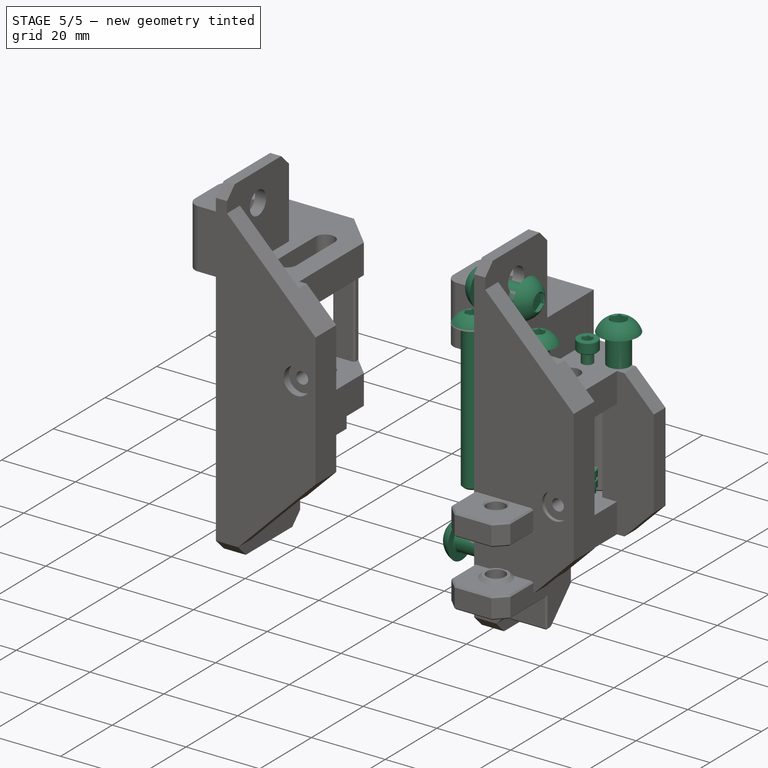
[diagram: stage 5 of 5 — iso view after this stage's code; geometry added in this stage tinted green]
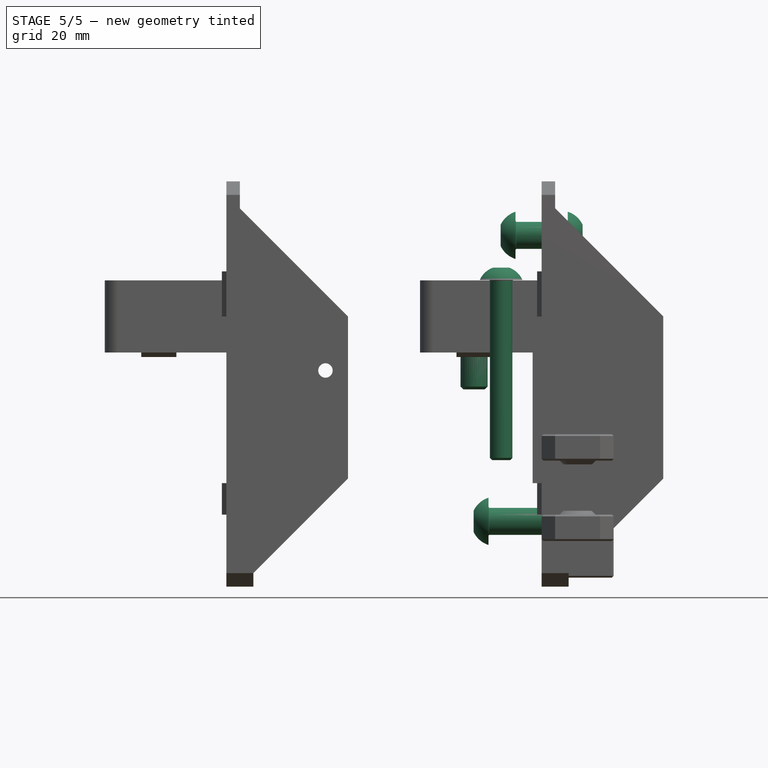
[diagram: stage 5 of 5 — front view after this stage's code; geometry added in this stage tinted green]
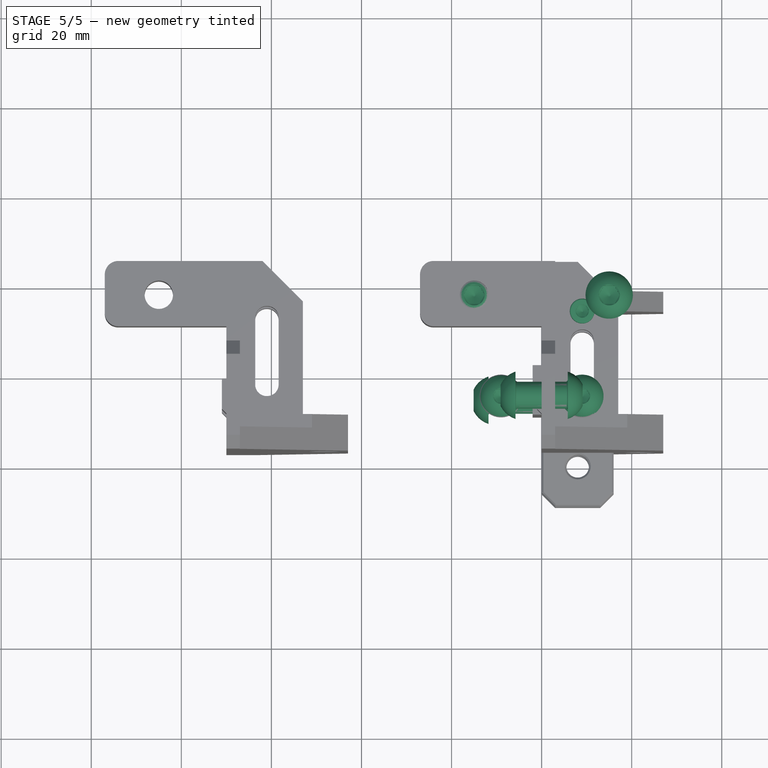
[diagram: stage 5 of 5 — top view after this stage's code; geometry added in this stage tinted green]
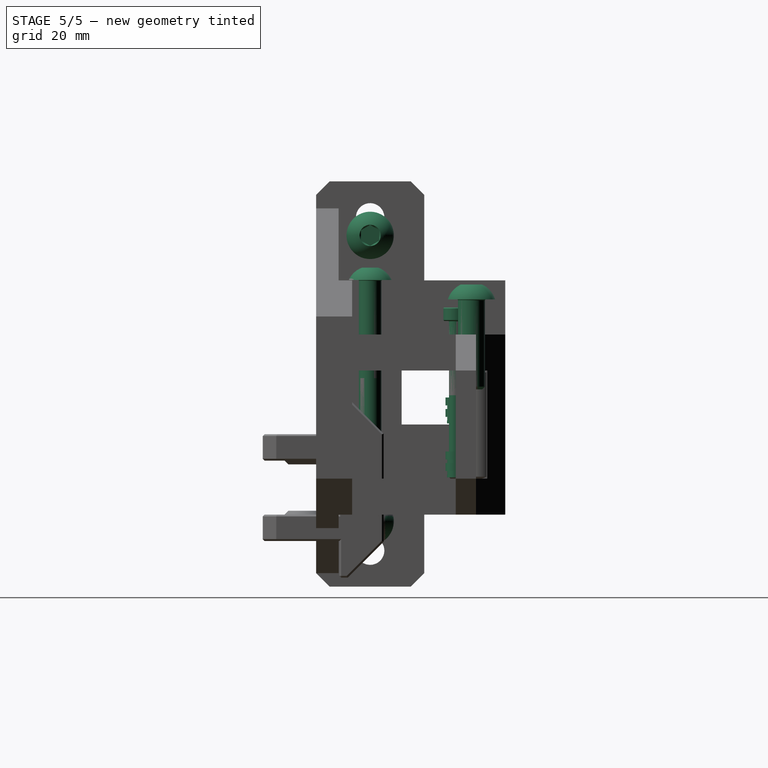
[diagram: stage 5 of 5 — right view after this stage's code; geometry added in this stage tinted green]
FEATURE [Part::Feature] Cut002002002001001  label="front-idler-spacer001"
  Placement = pos=(-2,0,0) rot=(0,0,1;0rad)
  shape: bbox 8 x 8 x 0.85 mm, 4 faces (baked)
FEATURE [Part::Feature] Cut002002002002001  label="front-idler-spacer"
  Placement = pos=(-2,0,0) rot=(0,0,1;0rad)
  shape: bbox 8 x 8 x 0.85 mm, 4 faces (baked)
FEATURE [Part::Feature] Cut002002002003  label="smooth-idler-6mm002"
  Placement = pos=(-2,0,0) rot=(0,0,1;0rad)
  shape: bbox 15 x 15 x 10 mm, 8 faces (baked)
FEATURE [Part::Feature] Chamfer019001  label="left-idler-bottom"
  shape: bbox 25 x 42 x 23 mm, 51 faces (baked)
FEATURE [Part::Feature] Chamfer020001  label="left-idler-mid"
  shape: bbox 45 x 42 x 32 mm, 61 faces (baked)
FEATURE [Part::FeaturePython] Washer002  label="M6-Washer002"  # Fasteners workbench fastener (typed FeaturePython)
  Placement = pos=(-15,37.5,40) rot=(0,0,1;0rad)
  baseObject = -> Chamfer020001 [Edge56]
  diameter = 2
  invert = false
  matchOuter = true
  offset = 0
  type = 4
FEATURE [Part::FeaturePython] Screw006  label="M3x35-Screw"  # Fasteners workbench fastener (typed FeaturePython)
  Placement = pos=(9,34,37) rot=(0,0,1;0rad)
  baseObject = -> Chamfer020001 [Edge152]
  diameter = 4
  invert = false
  length = 10
  lengthCustom = 35
  matchOuter = true
  offset = 0
  thread = false
  type = 33
FEATURE [Part::Feature] Cut002002002007004004001001  label="left-idler-top"
  shape: bbox 25 x 24 x 26 mm, 66 faces (baked)
FEATURE [Part::FeaturePython] Screw011  label="M6x20-Screw001"  # Fasteners workbench fastener (typed FeaturePython)
  Placement = pos=(-15,37.5,41.8) rot=(0,0,1;0rad)
  baseObject = -> Washer002 [Edge1]
  diameter = 4
  invert = false
  length = 4
  lengthCustom = 20
  matchOuter = true
  offset = 0
  thread = false
  type = 39
FEATURE [Part::FeaturePython] Washer007  label="M5-Washer002"  # Fasteners workbench fastener (typed FeaturePython)
  Placement = pos=(9,15,45) rot=(0,0,1;0rad)
  baseObject = -> Cut002002002007004004001001 [Edge154]
  diameter = 6
  invert = false
  matchOuter = true
  offset = 0
  type = 5
FEATURE [Part::FeaturePython] Screw013  label="M5x45-Screw"  # Fasteners workbench fastener (typed FeaturePython)
  Placement = pos=(9,15,46.1) rot=(0,0,1;0rad)
  baseObject = -> Washer007 [Edge1]
  diameter = 3
  invert = false
  length = 10
  lengthCustom = 45
  matchOuter = true
  offset = 0
  thread = false
  type = 39
FEATURE [Part::FeaturePython] HeatSet  label="M3x4-HeatSet"  # WARN: FeaturePython — macro-defined, semantics opaque (R4)
  Placement = pos=(9,34,8) rot=(0,0,1;0rad)
  baseObject = -> Chamfer019001 [Edge38]
  diameter = 2
  invert = false
  offset = 0
FEATURE [Part::FeaturePython] Washer008  label="M6-Washer005"  # Fasteners workbench fastener (typed FeaturePython)
  Placement = pos=(4,15,56) rot=(0,1,0;1.5708rad)
  baseObject = -> Cut002002002007004004001001 [Edge25]
  diameter = 2
  invert = true
  matchOuter = true
  offset = 0
  type = 4
FEATURE [Part::FeaturePython] Washer009  label="M6-Washer006"  # Fasteners workbench fastener (typed FeaturePython)
  Placement = pos=(10,15,-7.5) rot=(0,1,0;1.5708rad)
  baseObject = -> Chamfer019001 [Edge86]
  diameter = 2
  invert = false
  matchOuter = true
  offset = 0
  type = 4
FEATURE [Part::FeaturePython] Screw014  label="M6x14-Screw"  # Fasteners workbench fastener (typed FeaturePython)
  Placement = pos=(5.8,15,56) rot=(0,1,0;1.5708rad)
  baseObject = -> Washer008 [Edge1]
  diameter = 4
  invert = false
  length = 2
  lengthCustom = 14
  matchOuter = true
  offset = 0
  thread = false
  type = 40
FEATURE [Part::FeaturePython] Screw015  label="M6x20-Screw"  # Fasteners workbench fastener (typed FeaturePython)
  Placement = pos=(11.8,15,-7.5) rot=(0,1,0;1.5708rad)
  baseObject = -> Washer009 [Edge1]
  diameter = 4
  invert = false
  length = 4
  lengthCustom = 20
  matchOuter = true
  offset = 0
  thread = false
  type = 40
FEATURE [PartDesign::CoordinateSystem] LCS_left_idler  label="LCS_left-idler"
  AttacherType = Attacher::AttachEngine3D
FEATURE [App::Part] Part  label="left-idler"
  Group = -> [Cut002002002002001,Cut002002002001001,Cut002002002003,Chamfer019001,Chamfer020001,Screw006,Washer002,Cut002002002007004004001001,Screw011,Screw013,Washer007,HeatSet,Washer008,Washer009,Screw014,Screw015,LCS_left_idler]
  Origin = -> Origin
FEATURE [Part::Feature] Part__Mirroring004003  label="right-idler-bottom"
  shape: bbox 25 x 42 x 35 mm, 51 faces (baked)
FEATURE [Part::Feature] Part__Mirroring001  label="right-idler-mid"
  shape: bbox 45 x 42 x 20 mm, 62 faces (baked)
FEATURE [Part::FeaturePython] Screw  label="M3x25-Screw"  # Fasteners workbench fastener (typed FeaturePython)
  Placement = pos=(-9,34,37) rot=(0,0,1;0rad)
  baseObject = -> Part__Mirroring001 [Edge155]
  diameter = 4
  invert = true
  length = 10
  lengthCustom = 25
  matchOuter = true
  offset = 0
  thread = false
  type = 33
FEATURE [Part::FeaturePython] Washer  label="M6-Washer"  # Fasteners workbench fastener (typed FeaturePython)
  Placement = pos=(15,37.5,40) rot=(0,0,1;0rad)
  baseObject = -> Part__Mirroring001 [Edge44]
  diameter = 2
  invert = true
  matchOuter = true
  offset = 0
  type = 4
FEATURE [Part::FeaturePython] Screw001  label="M6x20-Screw002"  # Fasteners workbench fastener (typed FeaturePython)
  Placement = pos=(15,37.5,41.8) rot=(0,0,1;0rad)
  baseObject = -> Washer [Edge1]
  diameter = 4
  invert = false
  length = 4
  lengthCustom = 20
  matchOuter = true
  offset = 0
  thread = false
  type = 39
FEATURE [Part::FeaturePython] Washer001  label="M6-Washer007"  # Fasteners workbench fastener (typed FeaturePython)
  Placement = pos=(-10,15,-7.5) rot=(0,-1,0;1.5708rad)
  baseObject = -> Part__Mirroring004003 [Edge84]
  diameter = 2
  invert = true
  matchOuter = true
  offset = 0
  type = 4
FEATURE [Part::FeaturePython] Screw003  label="M6x20-Screw003"  # Fasteners workbench fastener (typed FeaturePython)
  Placement = pos=(-11.8,15,-7.5) rot=(0,-1,0;1.5708rad)
  baseObject = -> Washer001 [Edge1]
  diameter = 4
  invert = false
  length = 4
  lengthCustom = 20
  matchOuter = true
  offset = 0
  thread = false
  type = 39
FEATURE [Part::Feature] Part__Mirroring004004  label="right-idler-top"
  shape: bbox 25 x 24 x 26 mm, 66 faces (baked)
FEATURE [Part::FeaturePython] Washer005  label="M6-Washer008"  # Fasteners workbench fastener (typed FeaturePython)
  Placement = pos=(-4,15,56) rot=(0,-1,0;1.5708rad)
  baseObject = -> Part__Mirroring004004 [Edge25]
  diameter = 2
  invert = false
  matchOuter = true
  offset = 0
  type = 4
FEATURE [Part::FeaturePython] Screw009  label="M6x14-Screw001"  # Fasteners workbench fastener (typed FeaturePython)
  Placement = pos=(-5.8,15,56) rot=(0,-1,0;1.5708rad)
  baseObject = -> Washer005 [Edge1]
  diameter = 4
  invert = false
  length = 2
  lengthCustom = 14
  matchOuter = true
  offset = 0
  thread = false
  type = 39
FEATURE [Part::FeaturePython] HeatSet001  label="M3x4-HeatSet001"  # WARN: FeaturePython — macro-defined, semantics opaque (R4)
  Placement = pos=(-9,34,20) rot=(0,0,1;0rad)
  baseObject = -> Part__Mirroring004003 [Edge38]
  diameter = 2
  invert = true
  offset = 0
FEATURE [PartDesign::CoordinateSystem] LCS_right_idler  label="LCS_right-idler"
  AttacherType = Attacher::AttachEngine3D
FEATURE [Part::FeaturePython] Screw016  label="M5x40-Screw"  # Fasteners workbench fastener (typed FeaturePython)
  Placement = pos=(-9,15,46.1) rot=(0,0,1;0rad)
  baseObject = -> Washer006 [Edge1]
  diameter = 3
  invert = false
  length = 9
  lengthCustom = 40
  matchOuter = false
  offset = 0
  thread = false
  type = 40
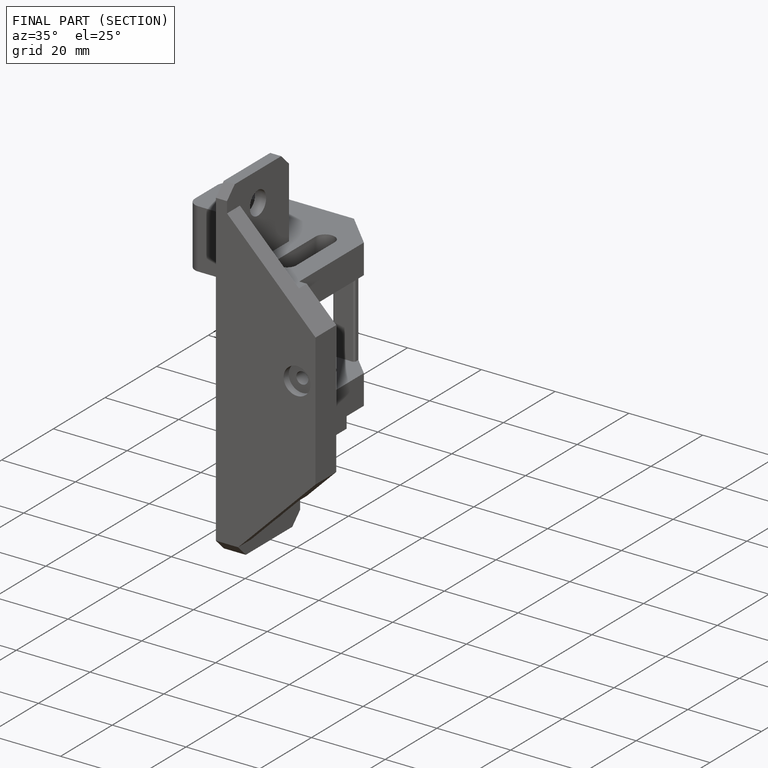
[diagram: finished part — half-section view (interior)]
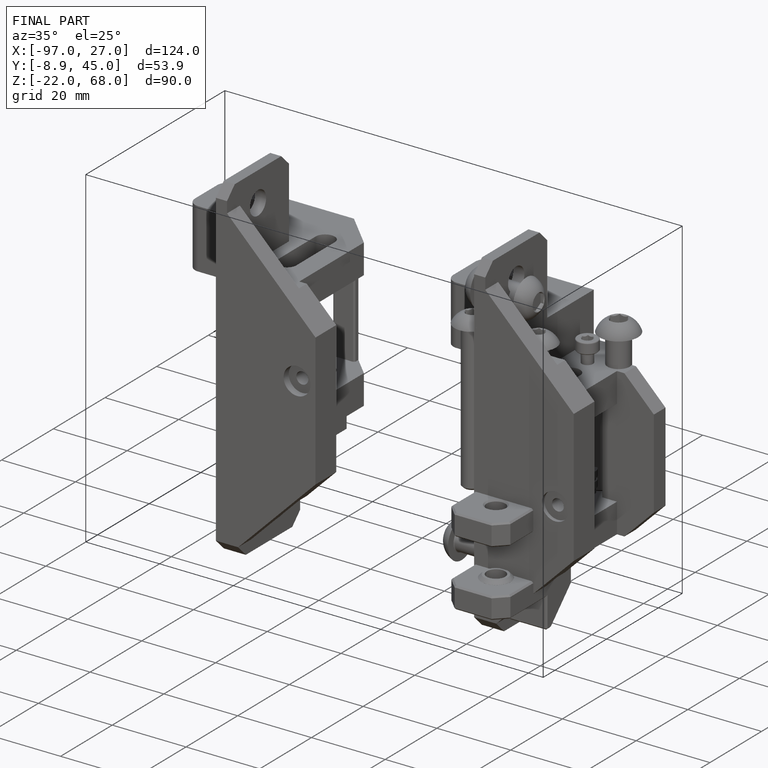
[diagram: finished part — iso view with bounding-box wireframe]
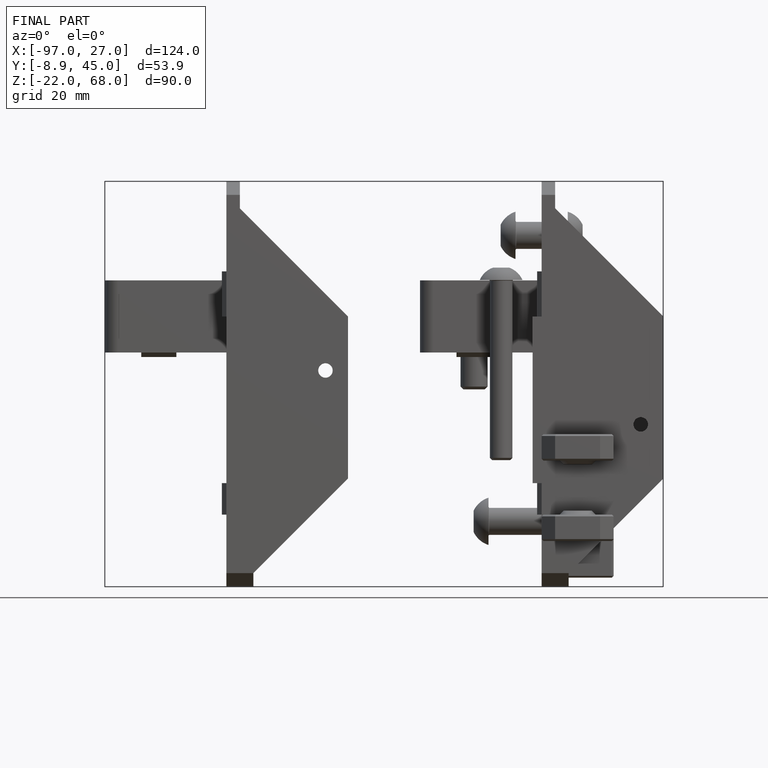
[diagram: finished part — front view with bounding-box wireframe]
